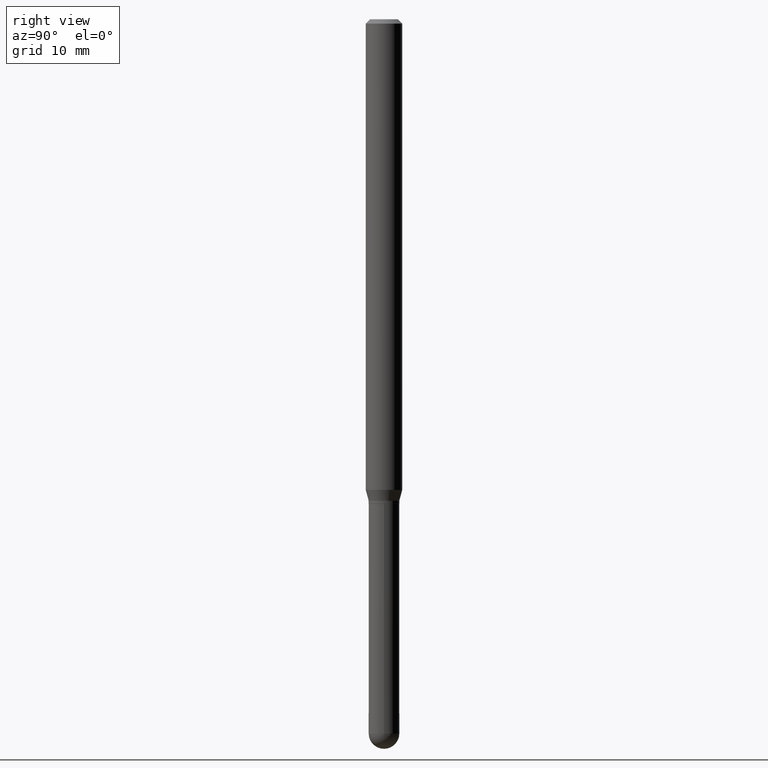
[diagram: clean part render]
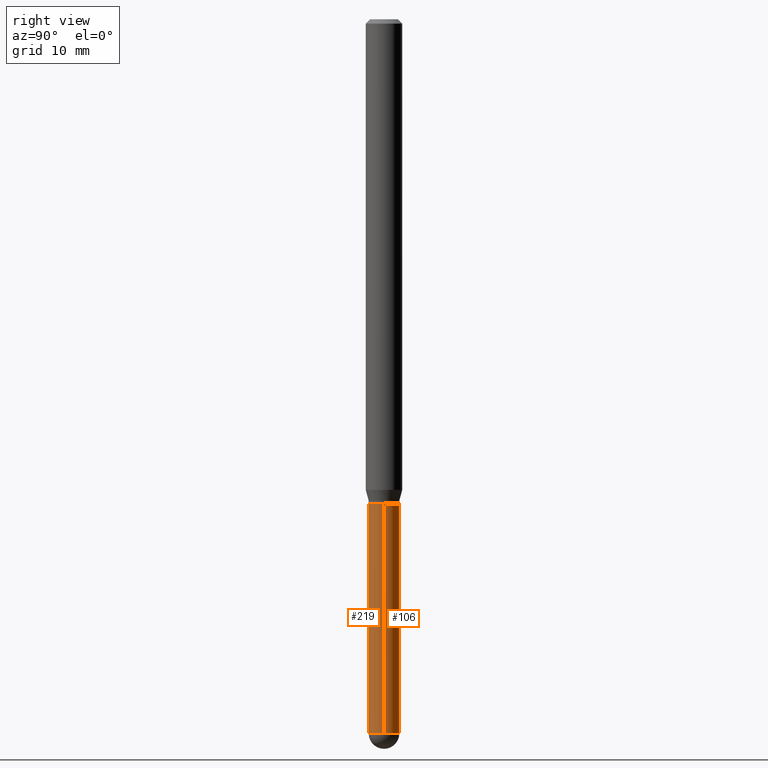
[diagram: same view with one multi-face feature highlighted, each face labeled with its STEP entity id]
A machine part, right view. The highlighted faces form ONE feature: a constant-radius fillet chain: 2 tangent blend faces with common blend radius 1.3335 mm. The faces share edges in the B-rep.
Their STEP definitions:
[1] entity #219 (Cylinder):
#26 = CARTESIAN_POINT ( 'NONE',  ( -0.05249999999999999806, 3.730349362740525838E-16, -2.582440922383825311E-30 ) ) ;
#30 = VERTEX_POINT ( 'NONE', #276 ) ;
#35 = CARTESIAN_POINT ( 'NONE',  ( 0.05249999999999999806, -6.162464563058152145E-15, -1.660000000000000364 ) ) ;
#37 = AXIS2_PLACEMENT_3D ( 'NONE', #202, #355, #510 ) ;
#42 = FACE_OUTER_BOUND ( 'NONE', #111, .T. ) ;
#64 = VECTOR ( 'NONE', #315, 39.37007874015748143 ) ;
#69 = LINE ( 'NONE', #26, #64 ) ;
#76 = VERTEX_POINT ( 'NONE', #464 ) ;
#77 = DIRECTION ( 'NONE',  ( -2.445468806185136597E-29, 3.491481338843145583E-15, 1.000000000000000000 ) ) ;
#84 = VECTOR ( 'NONE', #347, 39.37007874015748143 ) ;
#90 = CARTESIAN_POINT ( 'NONE',  ( 0.000000000000000000, 0.000000000000000000, 0.000000000000000000 ) ) ;
#111 = EDGE_LOOP ( 'NONE', ( #191, #380, #305, #279, #396 ) ) ;
#122 = CARTESIAN_POINT ( 'NONE',  ( -0.05249999999999999806, -6.797594863375057759E-15, -2.447500000000000231 ) ) ;
#129 = CYLINDRICAL_SURFACE ( 'NONE', #198, 0.05249999999999999806 ) ;
#140 = EDGE_CURVE ( 'NONE', #76, #271, #231, .T. ) ;
#143 = DIRECTION ( 'NONE',  ( 1.000000000000000000, -6.982962677686268288E-15, 0.000000000000000000 ) ) ;
#166 = AXIS2_PLACEMENT_3D ( 'NONE', #452, #461, #408 ) ;
#177 = CIRCLE ( 'NONE', #37, 0.05249999999999999806 ) ;
#191 = ORIENTED_EDGE ( 'NONE', *, *, #374, .F. ) ;
#192 = LINE ( 'NONE', #351, #84 ) ;
#198 = AXIS2_PLACEMENT_3D ( 'NONE', #90, #77, #386 ) ;
#202 = CARTESIAN_POINT ( 'NONE',  ( 5.985284903138122000E-29, -8.545400576818598390E-15, -2.447500000000000231 ) ) ;
#219 = ADVANCED_FACE ( 'NONE', ( #42 ), #129, .T. ) ;
#231 = CIRCLE ( 'NONE', #372, 0.05249999999999999806 ) ;
#236 = VERTEX_POINT ( 'NONE', #327 ) ;
#271 = VERTEX_POINT ( 'NONE', #35 ) ;
#275 = VERTEX_POINT ( 'NONE', #122 ) ;
#276 = CARTESIAN_POINT ( 'NONE',  ( -3.730349362739928276E-16, -0.05250000000000856065, -2.447499999999999787 ) ) ;
#279 = ORIENTED_EDGE ( 'NONE', *, *, #393, .T. ) ;
#305 = ORIENTED_EDGE ( 'NONE', *, *, #322, .T. ) ;
#315 = DIRECTION ( 'NONE',  ( -2.445468806185136877E-29, 3.491481338843145188E-15, 1.000000000000000000 ) ) ;
#322 = EDGE_CURVE ( 'NONE', #30, #236, #367, .T. ) ;
#327 = CARTESIAN_POINT ( 'NONE',  ( 0.05249999999999999806, -7.537235340227639453E-15, -2.447500000000000231 ) ) ;
#334 = CARTESIAN_POINT ( 'NONE',  ( 4.059478218267327378E-29, -5.795859022479622985E-15, -1.660000000000000364 ) ) ;
#335 = DIRECTION ( 'NONE',  ( -2.445468806185136597E-29, 3.491481338843145583E-15, 1.000000000000000000 ) ) ;
#338 = EDGE_CURVE ( 'NONE', #275, #30, #177, .T. ) ;
#347 = DIRECTION ( 'NONE',  ( -2.445468806185136877E-29, 3.491481338843145188E-15, 1.000000000000000000 ) ) ;
#351 = CARTESIAN_POINT ( 'NONE',  ( 0.05249999999999999806, -3.666055405785289629E-16, 2.559992807292866011E-30 ) ) ;
#355 = DIRECTION ( 'NONE',  ( -2.445468806185136597E-29, 3.491481338843145583E-15, 1.000000000000000000 ) ) ;
#367 = CIRCLE ( 'NONE', #166, 0.05249999999999999806 ) ;
#372 = AXIS2_PLACEMENT_3D ( 'NONE', #334, #335, #143 ) ;
#374 = EDGE_CURVE ( 'NONE', #275, #76, #69, .T. ) ;
#380 = ORIENTED_EDGE ( 'NONE', *, *, #338, .T. ) ;
#386 = DIRECTION ( 'NONE',  ( 1.000000000000000000, -6.982962677686265922E-15, 4.876176775795935232E-29 ) ) ;
#393 = EDGE_CURVE ( 'NONE', #236, #271, #192, .T. ) ;
#396 = ORIENTED_EDGE ( 'NONE', *, *, #140, .F. ) ;
#408 = DIRECTION ( 'NONE',  ( 1.000000000000000000, -6.982962677686250144E-15, 0.000000000000000000 ) ) ;
#452 = CARTESIAN_POINT ( 'NONE',  ( 5.985284903138122000E-29, -8.545400576818598390E-15, -2.447500000000000231 ) ) ;
#461 = DIRECTION ( 'NONE',  ( -2.445468806185136597E-29, 3.491481338843145583E-15, 1.000000000000000000 ) ) ;
#464 = CARTESIAN_POINT ( 'NONE',  ( -0.05249999999999999806, -6.797594863375057759E-15, -1.660000000000000364 ) ) ;
#510 = DIRECTION ( 'NONE',  ( 1.000000000000000000, -6.982962677686250144E-15, 0.000000000000000000 ) ) ;
[2] entity #106 (Cylinder):
#21 = CIRCLE ( 'NONE', #388, 0.05249999999999999806 ) ;
#26 = CARTESIAN_POINT ( 'NONE',  ( -0.05249999999999999806, 3.730349362740525838E-16, -2.582440922383825311E-30 ) ) ;
#28 = CARTESIAN_POINT ( 'NONE',  ( 4.059478218267327378E-29, -5.795859022479622985E-15, -1.660000000000000364 ) ) ;
#35 = CARTESIAN_POINT ( 'NONE',  ( 0.05249999999999999806, -6.162464563058152145E-15, -1.660000000000000364 ) ) ;
#64 = VECTOR ( 'NONE', #315, 39.37007874015748143 ) ;
#69 = LINE ( 'NONE', #26, #64 ) ;
#76 = VERTEX_POINT ( 'NONE', #464 ) ;
#79 = DIRECTION ( 'NONE',  ( 1.000000000000000000, -6.982962677686268288E-15, 0.000000000000000000 ) ) ;
#84 = VECTOR ( 'NONE', #347, 39.37007874015748143 ) ;
#87 = FACE_OUTER_BOUND ( 'NONE', #392, .T. ) ;
#93 = CARTESIAN_POINT ( 'NONE',  ( 0.000000000000000000, 0.000000000000000000, 0.000000000000000000 ) ) ;
#106 = ADVANCED_FACE ( 'NONE', ( #87 ), #434, .T. ) ;
#122 = CARTESIAN_POINT ( 'NONE',  ( -0.05249999999999999806, -6.797594863375057759E-15, -2.447500000000000231 ) ) ;
#145 = AXIS2_PLACEMENT_3D ( 'NONE', #188, #266, #419 ) ;
#154 = CARTESIAN_POINT ( 'NONE',  ( 3.666055405785888670E-16, 0.05249999999999146322, -2.447500000000000231 ) ) ;
#168 = CIRCLE ( 'NONE', #145, 0.05249999999999999806 ) ;
#170 = DIRECTION ( 'NONE',  ( -2.445468806185136597E-29, 3.491481338843145583E-15, 1.000000000000000000 ) ) ;
#188 = CARTESIAN_POINT ( 'NONE',  ( 5.985284903138122000E-29, -8.545400576818598390E-15, -2.447500000000000231 ) ) ;
#192 = LINE ( 'NONE', #351, #84 ) ;
#197 = ORIENTED_EDGE ( 'NONE', *, *, #341, .F. ) ;
#215 = EDGE_CURVE ( 'NONE', #446, #275, #267, .T. ) ;
#216 = AXIS2_PLACEMENT_3D ( 'NONE', #93, #252, #400 ) ;
#229 = ORIENTED_EDGE ( 'NONE', *, *, #406, .T. ) ;
#233 = ORIENTED_EDGE ( 'NONE', *, *, #393, .F. ) ;
#236 = VERTEX_POINT ( 'NONE', #327 ) ;
#244 = DIRECTION ( 'NONE',  ( 1.000000000000000000, -6.982962677686250144E-15, 0.000000000000000000 ) ) ;
#252 = DIRECTION ( 'NONE',  ( -2.445468806185136597E-29, 3.491481338843145583E-15, 1.000000000000000000 ) ) ;
#266 = DIRECTION ( 'NONE',  ( -2.445468806185136597E-29, 3.491481338843145583E-15, 1.000000000000000000 ) ) ;
#267 = CIRCLE ( 'NONE', #410, 0.05249999999999999806 ) ;
#271 = VERTEX_POINT ( 'NONE', #35 ) ;
#275 = VERTEX_POINT ( 'NONE', #122 ) ;
#315 = DIRECTION ( 'NONE',  ( -2.445468806185136877E-29, 3.491481338843145188E-15, 1.000000000000000000 ) ) ;
#327 = CARTESIAN_POINT ( 'NONE',  ( 0.05249999999999999806, -7.537235340227639453E-15, -2.447500000000000231 ) ) ;
#341 = EDGE_CURVE ( 'NONE', #271, #76, #21, .T. ) ;
#345 = DIRECTION ( 'NONE',  ( -2.445468806185136597E-29, 3.491481338843145583E-15, 1.000000000000000000 ) ) ;
#347 = DIRECTION ( 'NONE',  ( -2.445468806185136877E-29, 3.491481338843145188E-15, 1.000000000000000000 ) ) ;
#351 = CARTESIAN_POINT ( 'NONE',  ( 0.05249999999999999806, -3.666055405785289629E-16, 2.559992807292866011E-30 ) ) ;
#374 = EDGE_CURVE ( 'NONE', #275, #76, #69, .T. ) ;
#388 = AXIS2_PLACEMENT_3D ( 'NONE', #28, #345, #79 ) ;
#392 = EDGE_LOOP ( 'NONE', ( #505, #473, #197, #233, #229 ) ) ;
#393 = EDGE_CURVE ( 'NONE', #236, #271, #192, .T. ) ;
#400 = DIRECTION ( 'NONE',  ( 1.000000000000000000, -6.982962677686265922E-15, 4.876176775795935232E-29 ) ) ;
#406 = EDGE_CURVE ( 'NONE', #236, #446, #168, .T. ) ;
#410 = AXIS2_PLACEMENT_3D ( 'NONE', #474, #170, #244 ) ;
#419 = DIRECTION ( 'NONE',  ( 1.000000000000000000, -6.982962677686250144E-15, 0.000000000000000000 ) ) ;
#434 = CYLINDRICAL_SURFACE ( 'NONE', #216, 0.05249999999999999806 ) ;
#446 = VERTEX_POINT ( 'NONE', #154 ) ;
#464 = CARTESIAN_POINT ( 'NONE',  ( -0.05249999999999999806, -6.797594863375057759E-15, -1.660000000000000364 ) ) ;
#473 = ORIENTED_EDGE ( 'NONE', *, *, #374, .T. ) ;
#474 = CARTESIAN_POINT ( 'NONE',  ( 5.985284903138122000E-29, -8.545400576818598390E-15, -2.447500000000000231 ) ) ;
#505 = ORIENTED_EDGE ( 'NONE', *, *, #215, .T. ) ;